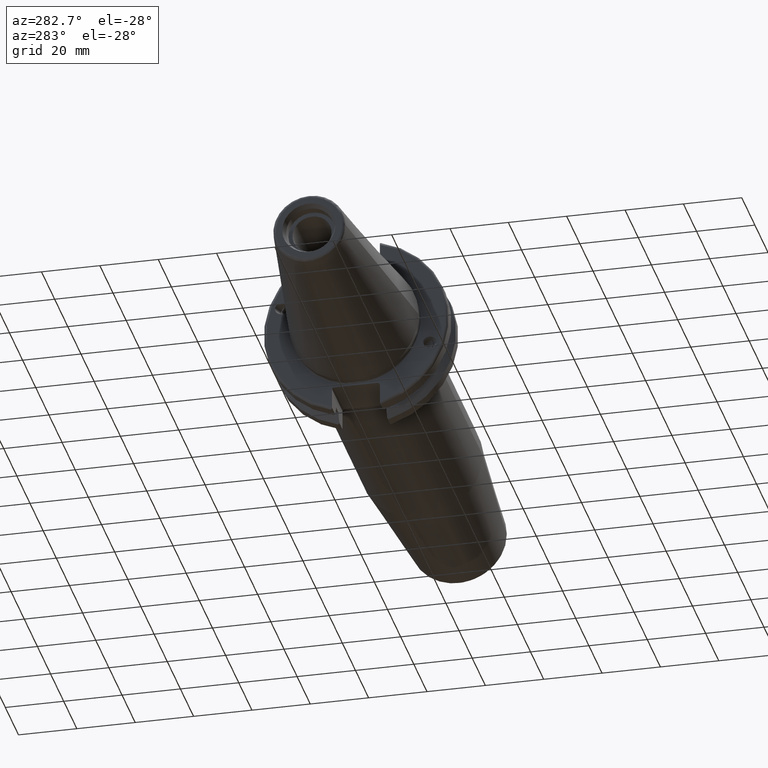
[diagram: clean part render]
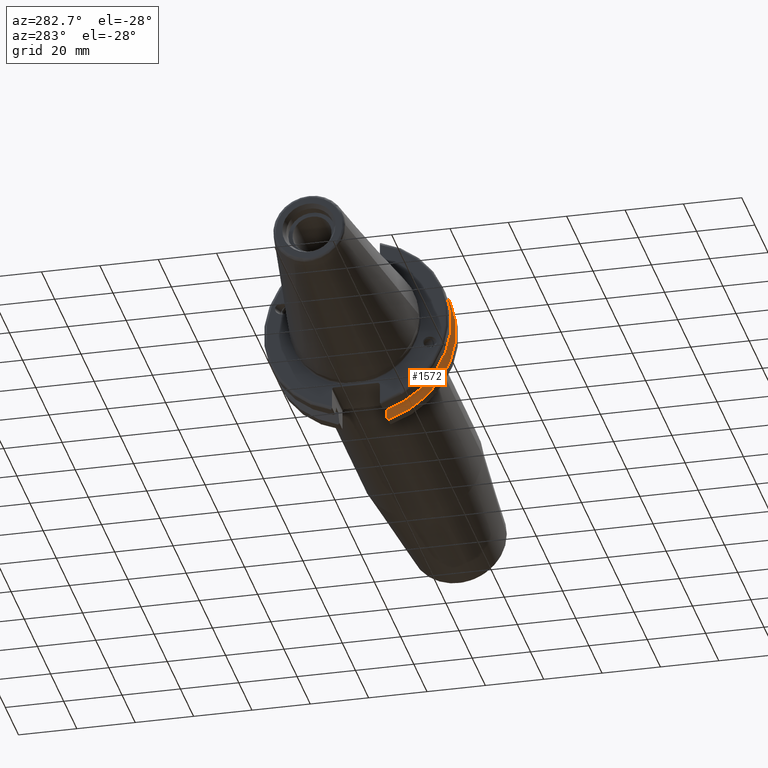
[diagram: same view with one face highlighted and labeled with its STEP entity id]
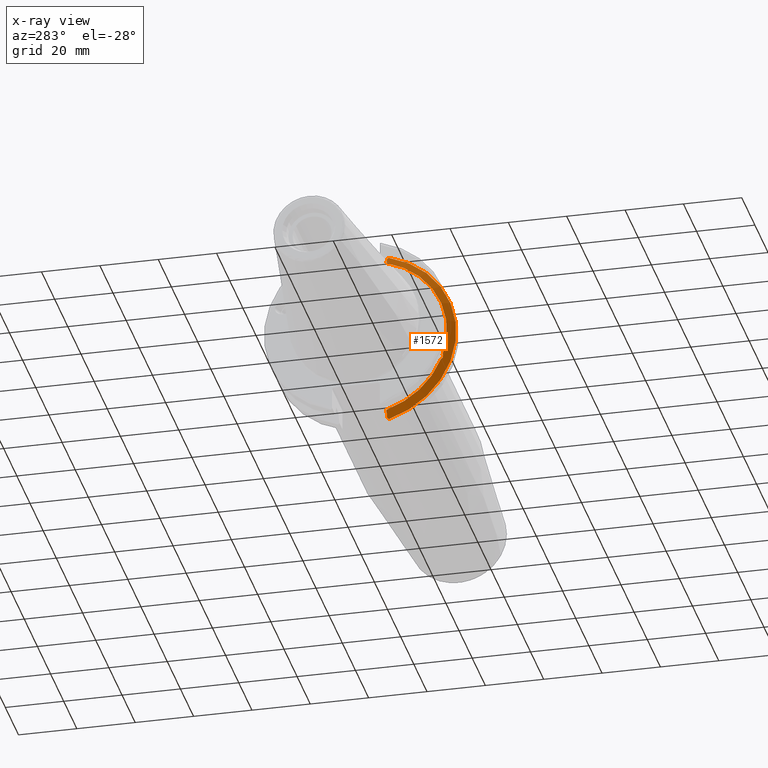
[diagram: x-ray of the same camera — body ghosted, the highlighted face saturated]
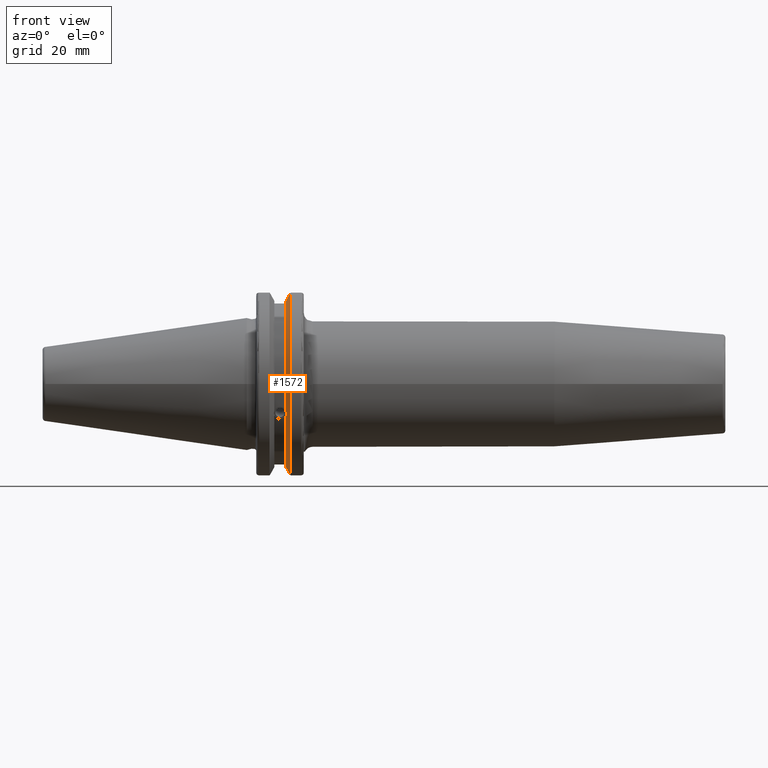
[diagram: same view with one face highlighted and labeled with its STEP entity id]
A machine part, auxiliary view. The second image highlights one B-rep face of the part: STEP entity #1572.
The next image is the same camera in x-ray: the body ghosted, the highlighted face saturated — about 0% of this face is hidden behind the body in this view.
A second angle (front view) of the same face is appended — the face is thin or edge-on in the first view.
In plain terms, the highlighted conical surface has half-angle 60 deg.
Its self-contained STEP definition (entity closure, byte-faithful):
#15=(
BOUNDED_CURVE()
B_SPLINE_CURVE(2,(#2613,#2614,#2615),.UNSPECIFIED.,.F.,.F.)
B_SPLINE_CURVE_WITH_KNOTS((3,3),(0.,0.276549142795512),.UNSPECIFIED.)
CURVE()
GEOMETRIC_REPRESENTATION_ITEM()
RATIONAL_B_SPLINE_CURVE((1.,1.00095203904184,1.00031614445102))
REPRESENTATION_ITEM('')
);
#16=(
BOUNDED_CURVE()
B_SPLINE_CURVE(2,(#2617,#2618,#2619),.UNSPECIFIED.,.F.,.F.)
B_SPLINE_CURVE_WITH_KNOTS((3,3),(0.,0.0639048713675663),.UNSPECIFIED.)
CURVE()
GEOMETRIC_REPRESENTATION_ITEM()
RATIONAL_B_SPLINE_CURVE((1.,1.00028444218286,1.00047644010578))
REPRESENTATION_ITEM('')
);
#17=(
BOUNDED_CURVE()
B_SPLINE_CURVE(2,(#2623,#2624,#2625),.UNSPECIFIED.,.F.,.F.)
B_SPLINE_CURVE_WITH_KNOTS((3,3),(0.329353533631206,0.393258405001023),
 .UNSPECIFIED.)
CURVE()
GEOMETRIC_REPRESENTATION_ITEM()
RATIONAL_B_SPLINE_CURVE((1.00047644010579,1.00028444218287,1.))
REPRESENTATION_ITEM('')
);
#18=(
BOUNDED_CURVE()
B_SPLINE_CURVE(2,(#2627,#2628,#2629),.UNSPECIFIED.,.F.,.F.)
B_SPLINE_CURVE_WITH_KNOTS((3,3),(0.0550586467393779,0.331607789535852),
 .UNSPECIFIED.)
CURVE()
GEOMETRIC_REPRESENTATION_ITEM()
RATIONAL_B_SPLINE_CURVE((1.00031614444922,1.00095203903643,1.))
REPRESENTATION_ITEM('')
);
#39=B_SPLINE_CURVE_WITH_KNOTS('',3,(#2520,#2521,#2522,#2523,#2524,#2525,
#2526,#2527),.UNSPECIFIED.,.F.,.F.,(4,2,2,4),(0.451995700189024,0.464547828547662,
0.504528771685167,0.544509714822672),.UNSPECIFIED.);
#43=B_SPLINE_CURVE_WITH_KNOTS('',3,(#2582,#2583,#2584,#2585,#2586,#2587,
#2588,#2589),.UNSPECIFIED.,.F.,.F.,(4,2,2,4),(0.544509714822672,0.584490657960178,
0.624471601097683,0.637023729456322),.UNSPECIFIED.);
#203=FACE_OUTER_BOUND('',#303,.T.);
#303=EDGE_LOOP('',(#1172,#1173,#1174,#1175,#1176,#1177,#1178,#1179,#1180));
#596=CIRCLE('',#1723,28.9593772964944);
#597=CIRCLE('',#1724,31.75);
#598=CIRCLE('',#1725,28.9593772964944);
#684=VERTEX_POINT('',#2517);
#685=VERTEX_POINT('',#2519);
#692=VERTEX_POINT('',#2580);
#698=VERTEX_POINT('',#2610);
#699=VERTEX_POINT('',#2612);
#700=VERTEX_POINT('',#2616);
#701=VERTEX_POINT('',#2620);
#702=VERTEX_POINT('',#2622);
#703=VERTEX_POINT('',#2626);
#860=EDGE_CURVE('',#685,#684,#39,.T.);
#868=EDGE_CURVE('',#684,#692,#43,.T.);
#877=EDGE_CURVE('',#692,#698,#596,.T.);
#878=EDGE_CURVE('',#698,#699,#15,.T.);
#879=EDGE_CURVE('',#700,#699,#16,.T.);
#880=EDGE_CURVE('',#701,#700,#597,.T.);
#881=EDGE_CURVE('',#702,#701,#17,.T.);
#882=EDGE_CURVE('',#702,#703,#18,.T.);
#883=EDGE_CURVE('',#703,#685,#598,.T.);
#1172=ORIENTED_EDGE('',*,*,#860,.T.);
#1173=ORIENTED_EDGE('',*,*,#868,.T.);
#1174=ORIENTED_EDGE('',*,*,#877,.T.);
#1175=ORIENTED_EDGE('',*,*,#878,.T.);
#1176=ORIENTED_EDGE('',*,*,#879,.F.);
#1177=ORIENTED_EDGE('',*,*,#880,.F.);
#1178=ORIENTED_EDGE('',*,*,#881,.F.);
#1179=ORIENTED_EDGE('',*,*,#882,.T.);
#1180=ORIENTED_EDGE('',*,*,#883,.T.);
#1537=CONICAL_SURFACE('',#1722,30.3546886482472,1.0471975511966);
#1572=ADVANCED_FACE('',(#203),#1537,.T.);
#1722=AXIS2_PLACEMENT_3D('',#2609,#1993,#1994);
#1723=AXIS2_PLACEMENT_3D('',#2611,#1995,#1996);
#1724=AXIS2_PLACEMENT_3D('',#2621,#1997,#1998);
#1725=AXIS2_PLACEMENT_3D('',#2630,#1999,#2000);
#1993=DIRECTION('center_axis',(1.,0.,0.));
#1994=DIRECTION('ref_axis',(0.,-1.,-1.22464679914735E-16));
#1995=DIRECTION('center_axis',(1.,0.,0.));
#1996=DIRECTION('ref_axis',(0.,0.,-1.));
#1997=DIRECTION('center_axis',(1.,0.,0.));
#1998=DIRECTION('ref_axis',(0.,0.,-1.));
#1999=DIRECTION('center_axis',(1.,0.,0.));
#2000=DIRECTION('ref_axis',(0.,0.,-1.));
#2517=CARTESIAN_POINT('',(13.2341,-27.51401829017,-10.0142836826777));
#2519=CARTESIAN_POINT('',(13.0491,-27.4956274489925,-9.09043478536245));
#2520=CARTESIAN_POINT('Ctrl Pts',(13.0491,-27.4956274489925,-9.09043478536245));
#2521=CARTESIAN_POINT('Ctrl Pts',(13.0632204071996,-27.5087667900418,-9.12860597076217));
#2522=CARTESIAN_POINT('Ctrl Pts',(13.0766929817857,-27.5206055003512,-9.16696618806877));
#2523=CARTESIAN_POINT('Ctrl Pts',(13.130081441159,-27.5642934663232,-9.32791534028656));
#2524=CARTESIAN_POINT('Ctrl Pts',(13.1682197084175,-27.5867382255984,-9.46717946402648));
#2525=CARTESIAN_POINT('Ctrl Pts',(13.2204106446058,-27.5847569104122,-9.74771639360671));
#2526=CARTESIAN_POINT('Ctrl Pts',(13.2341,-27.559599249844,-9.8890510252165));
#2527=CARTESIAN_POINT('Ctrl Pts',(13.2341,-27.51401829017,-10.0142836826777));
#2580=CARTESIAN_POINT('',(13.0491,-26.9060914640648,-10.7101715919071));
#2582=CARTESIAN_POINT('Ctrl Pts',(13.2341,-27.51401829017,-10.0142836826777));
#2583=CARTESIAN_POINT('Ctrl Pts',(13.2341,-27.4684373304961,-10.139516340139));
#2584=CARTESIAN_POINT('Ctrl Pts',(13.2204106446058,-27.3968610665578,-10.2639559818059));
#2585=CARTESIAN_POINT('Ctrl Pts',(13.1682197084175,-27.2180531796526,-10.4801333026531));
#2586=CARTESIAN_POINT('Ctrl Pts',(13.130081441159,-27.1113422433189,-10.5723885976054));
#2587=CARTESIAN_POINT('Ctrl Pts',(13.0766929817857,-26.9744191989197,-10.6676007180673));
#2588=CARTESIAN_POINT('Ctrl Pts',(13.0632204071996,-26.9406927482839,-10.6893765730703));
#2589=CARTESIAN_POINT('Ctrl Pts',(13.0491,-26.9060914640648,-10.7101715919071));
#2609=CARTESIAN_POINT('Origin',(13.8546833845378,0.,0.));
#2610=CARTESIAN_POINT('',(13.0491,-8.19,-27.7771386827498));
#2611=CARTESIAN_POINT('Origin',(13.0491,0.,0.));
#2612=CARTESIAN_POINT('',(14.3815146964874,-8.19,-30.1755016258903));
#2613=CARTESIAN_POINT('Ctrl Pts',(13.0491,-8.19,-27.7771386827498));
#2614=CARTESIAN_POINT('Ctrl Pts',(13.68773643849,-8.19,-28.9303689539956));
#2615=CARTESIAN_POINT('Ctrl Pts',(14.3815146964874,-8.19,-30.1755016258903));
#2616=CARTESIAN_POINT('',(14.6602667690756,-8.67204822802686,-30.5427254764662));
#2617=CARTESIAN_POINT('Ctrl Pts',(14.6602667690756,-8.67204822802687,-30.5427254764662));
#2618=CARTESIAN_POINT('Ctrl Pts',(14.5192085187837,-8.42917748262644,-30.357706789263));
#2619=CARTESIAN_POINT('Ctrl Pts',(14.3815146964874,-8.19,-30.1755016258903));
#2620=CARTESIAN_POINT('',(14.6602667690756,-8.67204822802685,30.5427254764662));
#2621=CARTESIAN_POINT('Origin',(14.6602667690756,0.,0.));
#2622=CARTESIAN_POINT('',(14.3815146964874,-8.19,30.1755016258903));
#2623=CARTESIAN_POINT('Ctrl Pts',(14.3815146964874,-8.19,30.1755016258903));
#2624=CARTESIAN_POINT('Ctrl Pts',(14.5192085187884,-8.42917748263465,30.3577067892692));
#2625=CARTESIAN_POINT('Ctrl Pts',(14.6602667690756,-8.67204822802686,30.5427254764662));
#2626=CARTESIAN_POINT('',(13.0491,-8.19,27.7771386827498));
#2627=CARTESIAN_POINT('Ctrl Pts',(14.3815146964874,-8.19,30.1755016258903));
#2628=CARTESIAN_POINT('Ctrl Pts',(13.687736438474,-8.19,28.9303689539668));
#2629=CARTESIAN_POINT('Ctrl Pts',(13.0491,-8.19,27.7771386827498));
#2630=CARTESIAN_POINT('Origin',(13.0491,0.,0.));